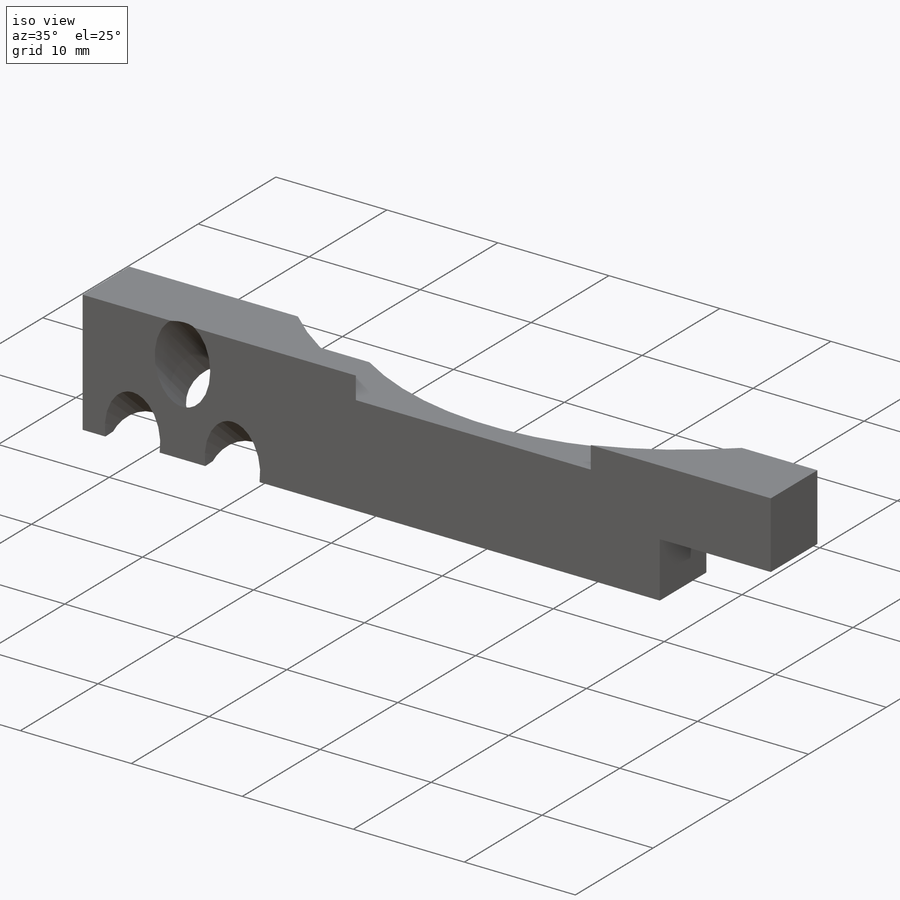
[diagram: iso view]
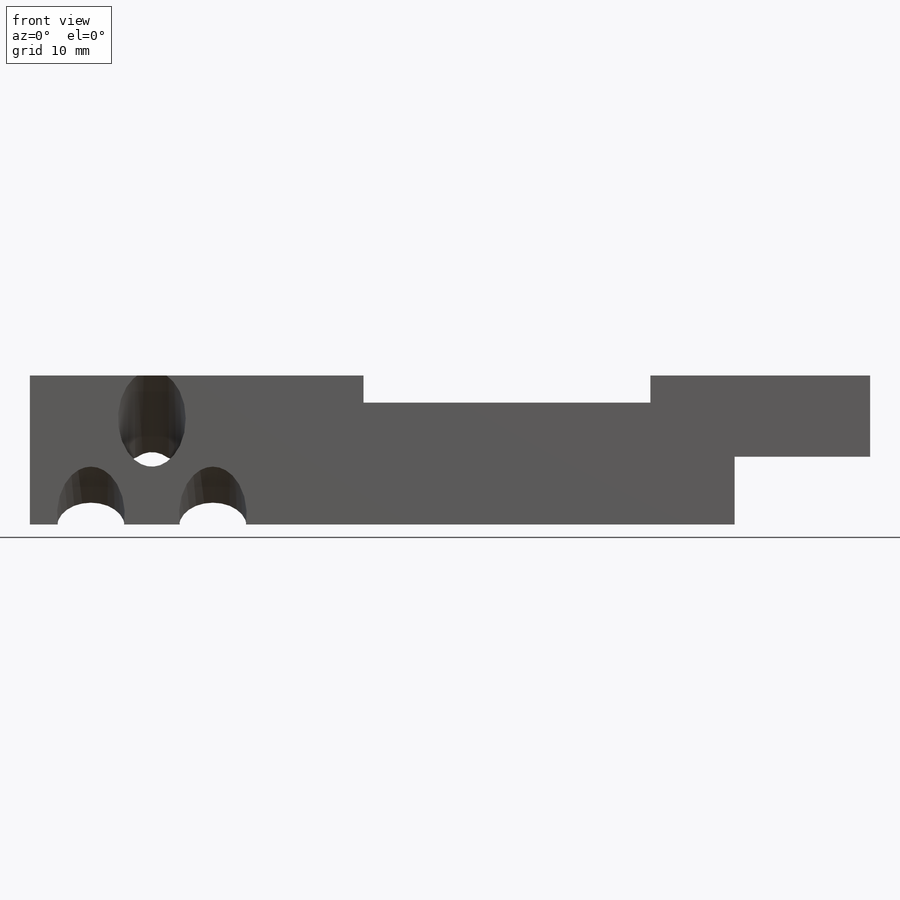
[diagram: front view]
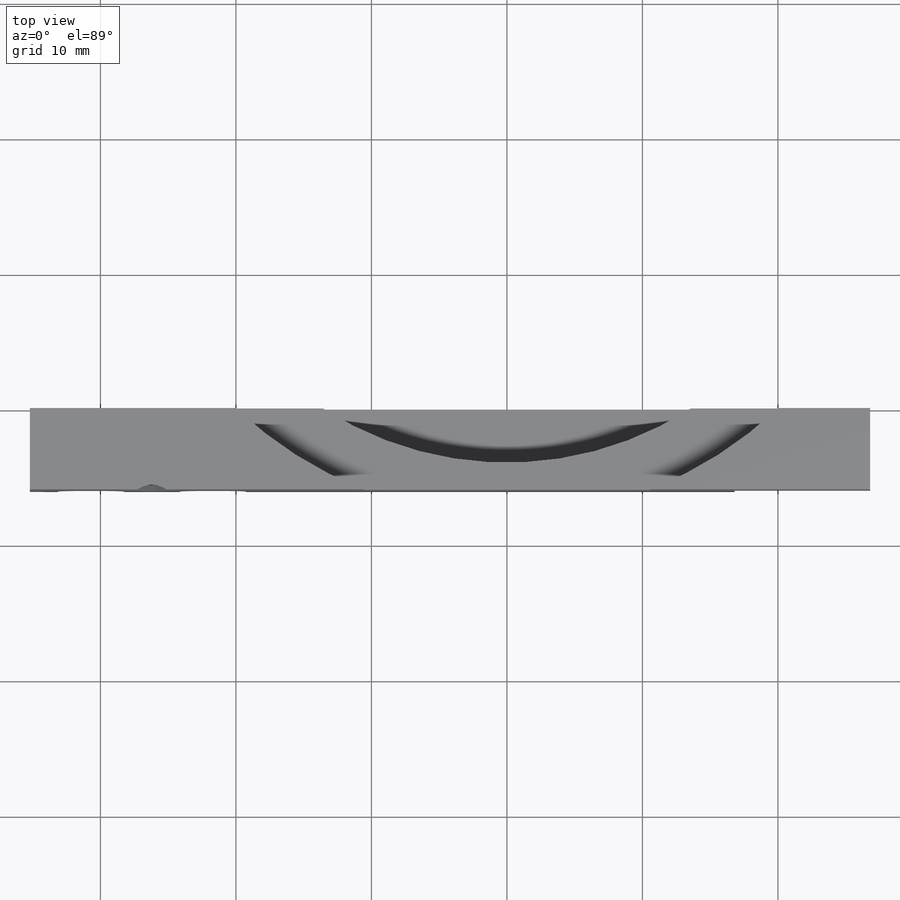
[diagram: top view]
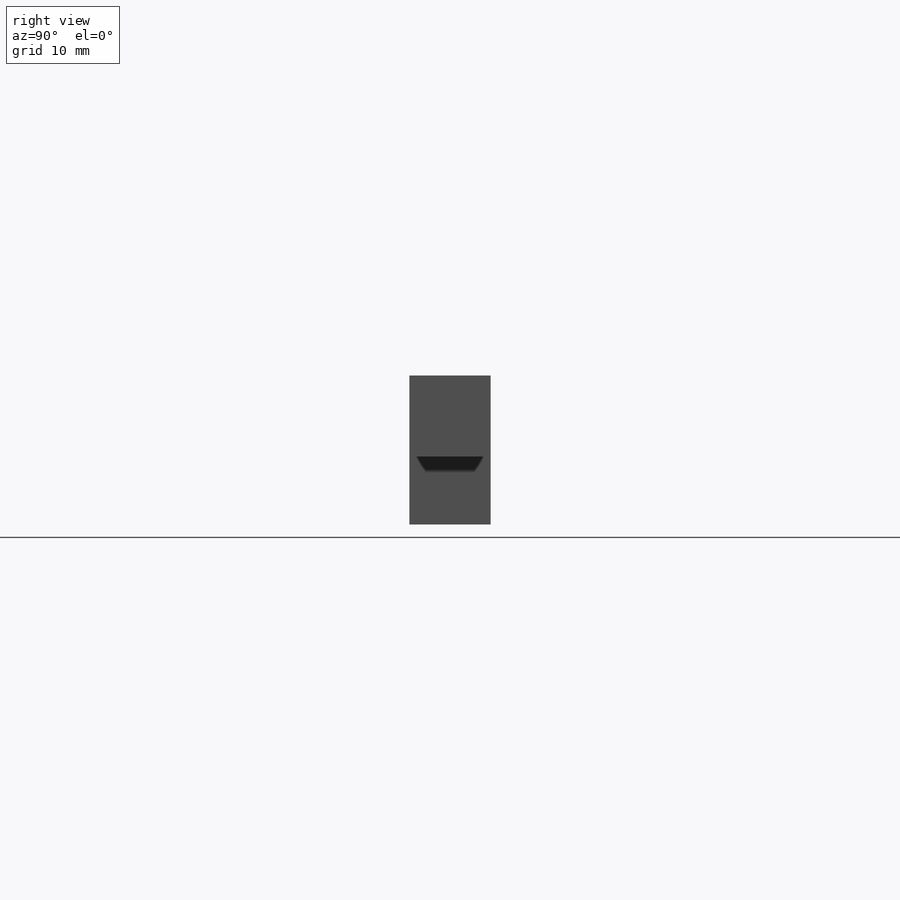
[diagram: right view]
SOLIDWORKS PART (.sldprt)
format: sldprt  version: not decoded by parser v0  size: 244,224 bytes
history: native  units: mm
features: sketch x8, cut_extrude x7, plane x3, material x1, extrude x1 (+13 scaffold rows collapsed)
feature tree (33):
  scaffold x13  (default folders/planes/origin — collapsed)
  material  "Материал <не указан>"
  plane  "Спереди"
  plane  "Сверху"
  plane  "Справа"
  sketch  "Эскиз1"  dims[D1=70.4mm D2=11.0mm]
  extrude  "Бобышка-Вытянуть1"  Depth=6mm
  sketch  "Эскиз3"  dims[D1=25.0mm D2=27.0mm]
  cut_extrude  "Вырез-Вытянуть1"  Depth=6.5mm
  sketch  "Эскиз4"  dims[D1=8.0mm D2=7.0mm]
  cut_extrude  "Вырез-Вытянуть2"  [1 undecoded]
  sketch  "Эскиз6"  dims[c1.D1=11.0mm c2.D1=45.0deg c2.D2=3.5mm]
  cut_extrude  "Вырез-Вытянуть3"  Depth=17mm
  sketch  "Эскиз7"  dims[D1=29.0mm]
  cut_extrude  "Вырез-Вытянуть4"  Depth=2mm
  sketch  "Эскиз9"  dims[D1=62.0mm]
  cut_extrude  "Вырез-Вытянуть5"  [1 undecoded]
  sketch  "Эскиз10"  dims[c1.D1=10.0mm c1.D2=6.0mm c2.D1=52.0mm]
  cut_extrude  "Вырез-Вытянуть6"  [1 undecoded]
  sketch  "Эскиз11"  dims[c1.D3=~3.913783mm c1.D4=~3.913783mm c1.D5=~3.913783mm c1.D6=5.0mm c1.D7=5.0mm c1.D1=6.5mm c1.D2=9.0mm c2.D3=4.5mm c2.D4=4.5mm c2.D5=5.0mm]
  cut_extrude  "Вырез-Вытянуть7"  [1 undecoded]
decode coverage: 12 of 16 modeling features carry decoded parameters
note: ~ marks probable driven/reference dimensions
note: 4 parameter values undecoded
summary: no parameter record found for 4 features
note: suppression state not decoded; provenance and decode notes live in map.json
